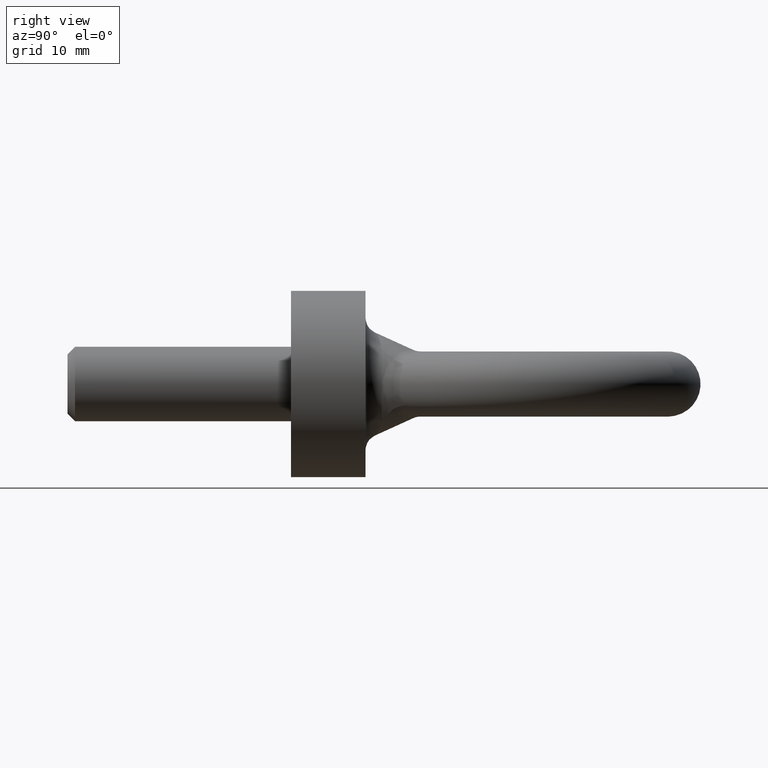
[diagram: clean part render]
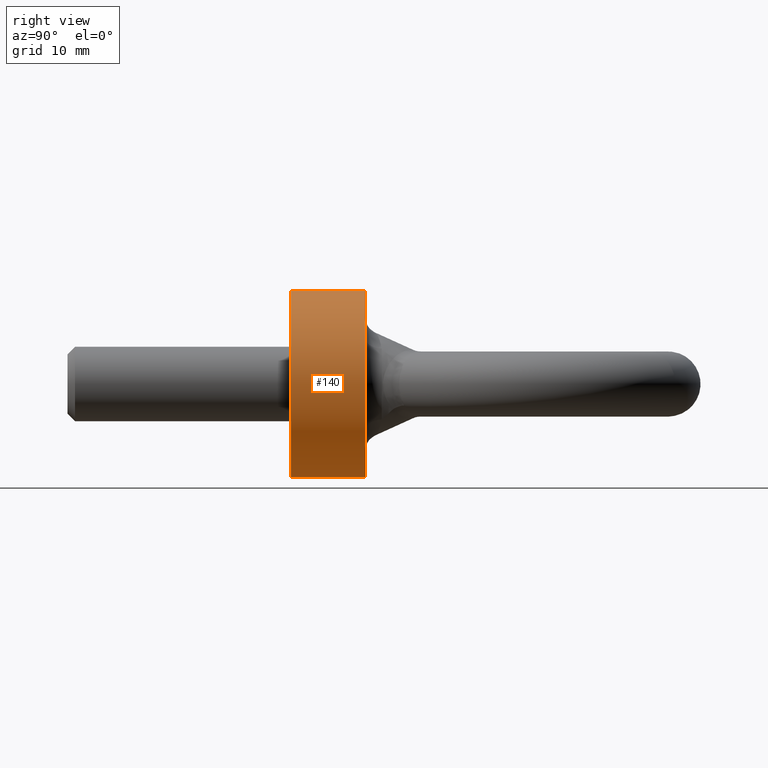
[diagram: same view with one face highlighted and labeled with its STEP entity id]
A machine part, right view. The second image highlights one B-rep face of the part: STEP entity #140.
In plain terms, the highlighted cylindrical surface (bore or boss wall) has radius 10 mm, axis along (0, 1, 0).
Its self-contained STEP definition (entity closure, byte-faithful):
#86=FACE_BOUND('',#221,.T.);
#87=FACE_BOUND('',#222,.T.);
#140=ADVANCED_FACE('',(#86,#87),#171,.T.);
#171=CYLINDRICAL_SURFACE('',#648,10.);
#221=EDGE_LOOP('',(#366));
#222=EDGE_LOOP('',(#367));
#297=CIRCLE('',#645,10.);
#298=CIRCLE('',#647,10.);
#366=ORIENTED_EDGE('',*,*,#568,.F.);
#367=ORIENTED_EDGE('',*,*,#567,.T.);
#510=VERTEX_POINT('',#1044);
#511=VERTEX_POINT('',#1047);
#567=EDGE_CURVE('',#510,#510,#297,.T.);
#568=EDGE_CURVE('',#511,#511,#298,.T.);
#645=AXIS2_PLACEMENT_3D('',#1043,#728,#729);
#647=AXIS2_PLACEMENT_3D('',#1046,#732,#733);
#648=AXIS2_PLACEMENT_3D('',#1048,#734,#735);
#728=DIRECTION('',(0.,1.,0.));
#729=DIRECTION('',(0.,0.,1.));
#732=DIRECTION('',(0.,1.,0.));
#733=DIRECTION('',(0.,0.,1.));
#734=DIRECTION('',(0.,1.,0.));
#735=DIRECTION('',(0.,0.,1.));
#1043=CARTESIAN_POINT('',(0.,0.,0.));
#1044=CARTESIAN_POINT('',(0.,0.,10.));
#1046=CARTESIAN_POINT('',(0.,8.,0.));
#1047=CARTESIAN_POINT('',(0.,8.,10.));
#1048=CARTESIAN_POINT('',(0.,-24.,0.));